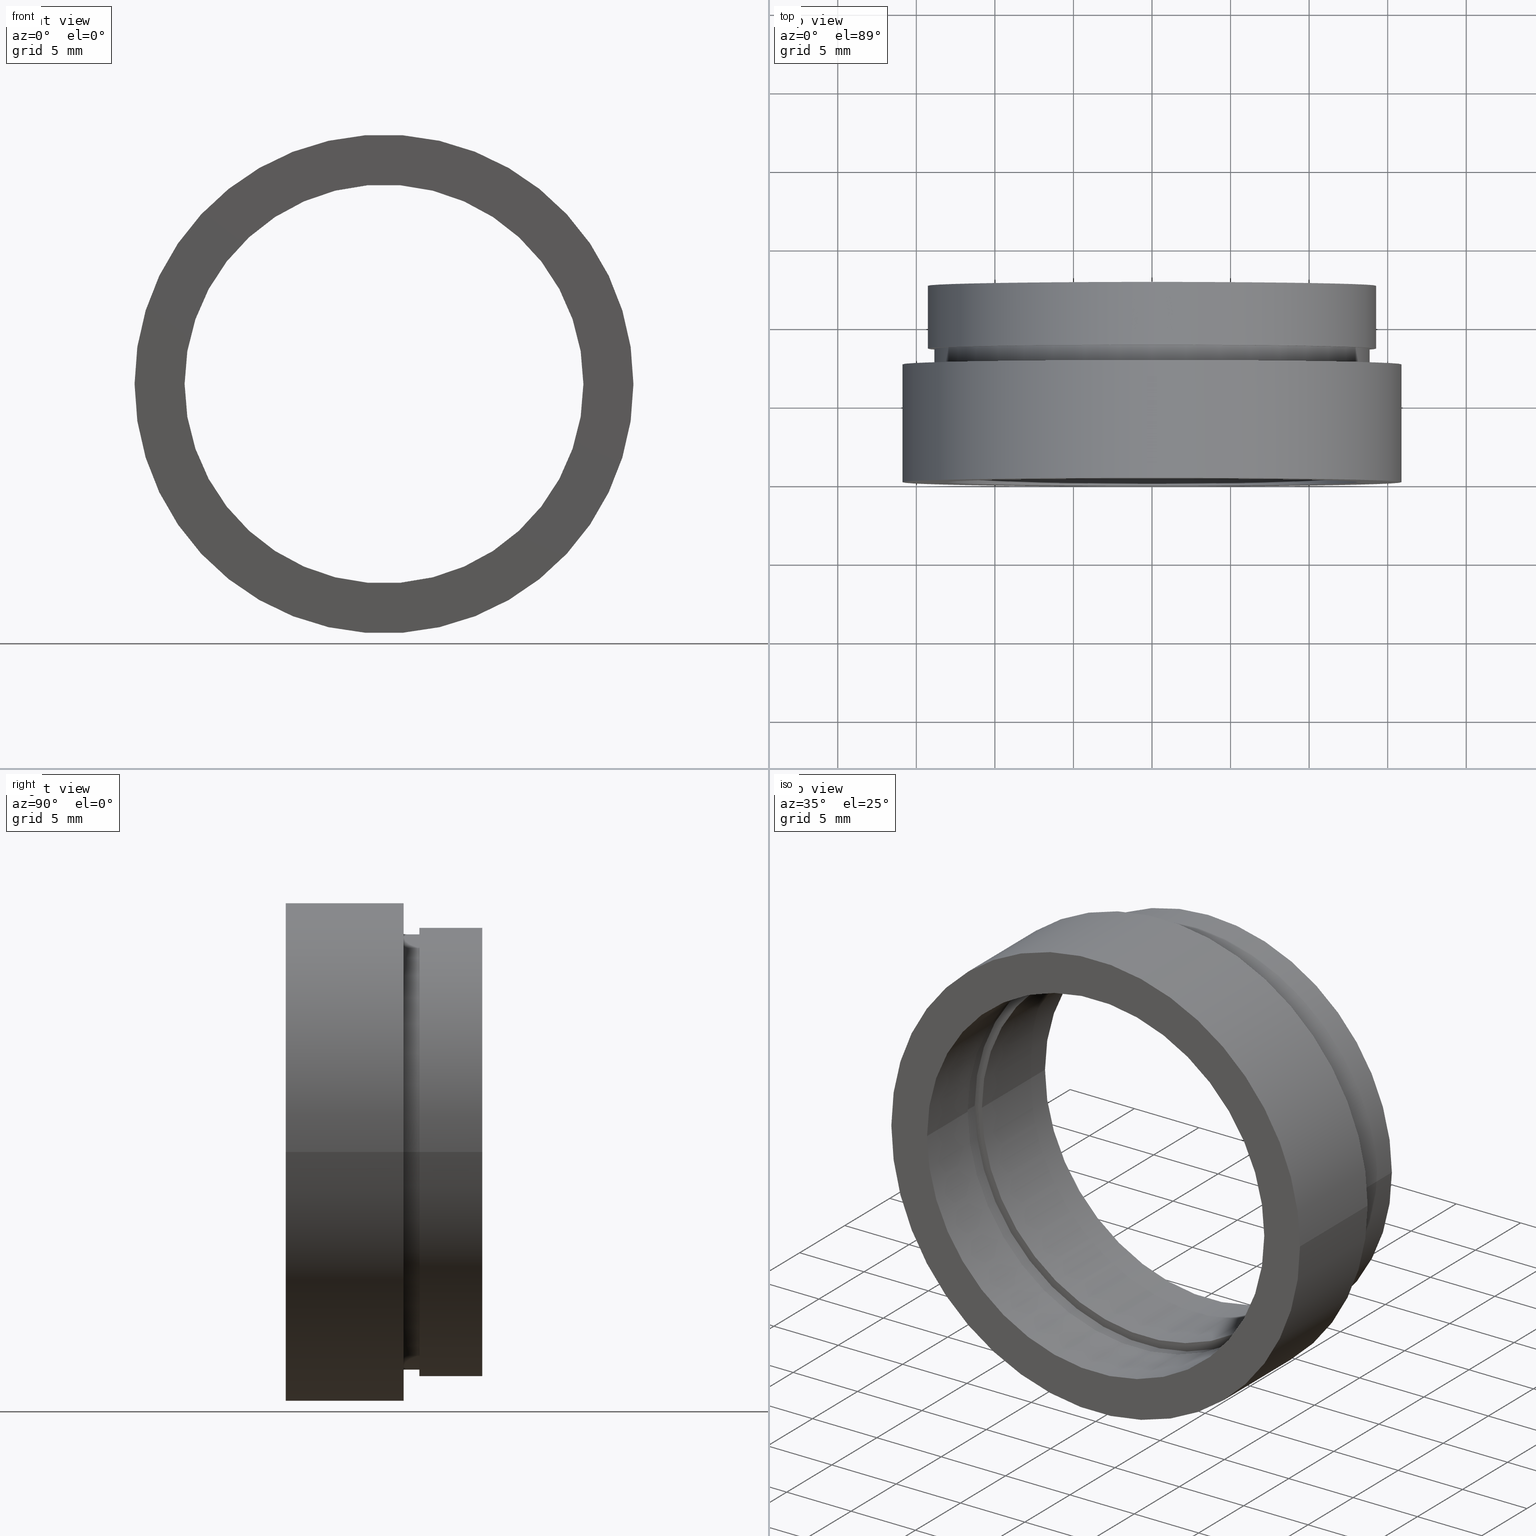
[diagram: canonical four-view strip — front | top / right | iso, engineering-drawing reading convention]
A machine part, canonical four-view strip (front | top / right | iso — engineering-drawing reading convention). The complete STEP part file that produces these views, byte-faithful:
ISO-10303-21;
HEADER;
FILE_DESCRIPTION (( 'STEP AP214' ),
    '1' );
FILE_NAME ('504122.STEP',
    '2019-10-09T01:26:01',
    ( '' ),
    ( '' ),
    'SwSTEP 2.0',
    'SolidWorks 2016',
    '' );
FILE_SCHEMA (( 'AUTOMOTIVE_DESIGN' ));
ENDSEC;

DATA;
#1 = ORIENTED_EDGE ( 'NONE', *, *, #414, .T. ) ;
#2 = DIRECTION ( 'NONE',  ( -1.000000000000000000, -1.367000375080226200E-016, 0.0000000000000000000 ) ) ;
#3 =( GEOMETRIC_REPRESENTATION_CONTEXT ( 3 ) GLOBAL_UNCERTAINTY_ASSIGNED_CONTEXT ( ( #333 ) ) GLOBAL_UNIT_ASSIGNED_CONTEXT ( ( #129, #171, #426 ) ) REPRESENTATION_CONTEXT ( 'NONE', 'WORKASPACE' ) );
#4 = CARTESIAN_POINT ( 'NONE',  ( 1.026991039163387700E-015, 8.499999999999998200, 0.0000000000000000000 ) ) ;
#5 = CARTESIAN_POINT ( 'NONE',  ( -15.87499999999999300, -5.413573745600033100E-015, 0.0000000000000000000 ) ) ;
#6 = EDGE_CURVE ( 'NONE', #150, #107, #270, .T. ) ;
#7 = LINE ( 'NONE', #198, #309 ) ;
#8 = CARTESIAN_POINT ( 'NONE',  ( -13.09999999999999800, 4.499999999999993800, 0.0000000000000000000 ) ) ;
#9 = VERTEX_POINT ( 'NONE', #24 ) ;
#10 = MECHANICAL_DESIGN_GEOMETRIC_PRESENTATION_REPRESENTATION (  '', ( #72 ), #468 ) ;
#11 = DIRECTION ( 'NONE',  ( -1.000000000000000000, -1.216496126210944700E-016, 0.0000000000000000000 ) ) ;
#12 = STYLED_ITEM ( 'NONE', ( #207 ), #561 ) ;
#13 = DIRECTION ( 'NONE',  ( -1.224646799147351000E-016, 1.000000000000000000, -0.0000000000000000000 ) ) ;
#14 = ORIENTED_EDGE ( 'NONE', *, *, #193, .F. ) ;
#15 = ORIENTED_EDGE ( 'NONE', *, *, #353, .F. ) ;
#16 = VERTEX_POINT ( 'NONE', #366 ) ;
#17 = FACE_OUTER_BOUND ( 'NONE', #563, .T. ) ;
#18 = EDGE_CURVE ( 'NONE', #212, #379, #507, .T. ) ;
#19 = EDGE_LOOP ( 'NONE', ( #179, #532 ) ) ;
#20 = PRODUCT_DEFINITION_CONTEXT ( 'detailed design', #133, 'design' ) ;
#21 = CARTESIAN_POINT ( 'NONE',  ( 1.149455719078122700E-015, 7.499999999999998200, 0.0000000000000000000 ) ) ;
#22 = AXIS2_PLACEMENT_3D ( 'NONE', #434, #374, #54 ) ;
#23 = ORIENTED_EDGE ( 'NONE', *, *, #230, .F. ) ;
#24 = CARTESIAN_POINT ( 'NONE',  ( -13.84999999999999800, 7.499999999999996400, 0.0000000000000000000 ) ) ;
#25 = AXIS2_PLACEMENT_3D ( 'NONE', #624, #431, #41 ) ;
#26 = SURFACE_STYLE_USAGE ( .BOTH. , #301 ) ;
#27 = DIRECTION ( 'NONE',  ( -1.000000000000000000, -1.224646799147351000E-016, 0.0000000000000000000 ) ) ;
#28 = UNCERTAINTY_MEASURE_WITH_UNIT (LENGTH_MEASURE( 1.000000000000000100E-005 ), #222, 'distance_accuracy_value', 'NONE');
#29 = EDGE_LOOP ( 'NONE', ( #23, #313 ) ) ;
#30 = FACE_OUTER_BOUND ( 'NONE', #505, .T. ) ;
#31 = EDGE_LOOP ( 'NONE', ( #139, #14 ) ) ;
#32 = CARTESIAN_POINT ( 'NONE',  ( -13.09999999999999800, -1.604287306883029700E-015, 0.0000000000000000000 ) ) ;
#33 = DIRECTION ( 'NONE',  ( -1.224646799147351000E-016, 1.000000000000000000, -0.0000000000000000000 ) ) ;
#34 = EDGE_CURVE ( 'NONE', #369, #287, #443, .T. ) ;
#35 = CARTESIAN_POINT ( 'NONE',  ( 0.0000000000000000000, 16.88601823708207700, 0.0000000000000000000 ) ) ;
#36 = ORIENTED_EDGE ( 'NONE', *, *, #444, .T. ) ;
#37 = CIRCLE ( 'NONE', #268, 12.68999999999999800 ) ;
#38 = DIRECTION ( 'NONE',  ( -1.000000000000000000, 0.0000000000000000000, 0.0000000000000000000 ) ) ;
#39 = LINE ( 'NONE', #462, #322 ) ;
#40 = SURFACE_STYLE_USAGE ( .BOTH. , #562 ) ;
#41 = DIRECTION ( 'NONE',  ( -1.000000000000000000, -1.216496126210944700E-016, 0.0000000000000000000 ) ) ;
#42 = DIRECTION ( 'NONE',  ( -1.224646799147351000E-016, 1.000000000000000000, -0.0000000000000000000 ) ) ;
#43 = DIRECTION ( 'NONE',  ( -1.000000000000000000, -1.309225264888156400E-016, 0.0000000000000000000 ) ) ;
#44 = PRESENTATION_LAYER_ASSIGNMENT (  '', '', ( #533 ) ) ;
#45 = PRESENTATION_STYLE_ASSIGNMENT (( #184 ) ) ;
#46 = DIRECTION ( 'NONE',  ( 1.000000000000000000, 1.224646799147351000E-016, 0.0000000000000000000 ) ) ;
#47 = EDGE_CURVE ( 'NONE', #342, #334, #306, .T. ) ;
#48 = DIRECTION ( 'NONE',  ( -1.224646799147351000E-016, 1.000000000000000000, 0.0000000000000000000 ) ) ;
#49 = CYLINDRICAL_SURFACE ( 'NONE', #249, 13.10000000000000000 ) ;
#50 = DIRECTION ( 'NONE',  ( -1.224646799147351000E-016, 1.000000000000000000, -0.0000000000000000000 ) ) ;
#51 = FILL_AREA_STYLE ('',( #227 ) ) ;
#52 = PRESENTATION_LAYER_ASSIGNMENT (  '', '', ( #490 ) ) ;
#53 = CIRCLE ( 'NONE', #253, 13.85000000000000000 ) ;
#54 = DIRECTION ( 'NONE',  ( -1.000000000000000000, -1.252507924893001600E-016, 0.0000000000000000000 ) ) ;
#55 = DIRECTION ( 'NONE',  ( 1.224646799147351000E-016, -1.000000000000000000, 0.0000000000000000000 ) ) ;
#56 = EDGE_CURVE ( 'NONE', #107, #453, #572, .T. ) ;
#57 = DIRECTION ( 'NONE',  ( -1.000000000000000000, -1.367000375080226400E-016, 0.0000000000000000000 ) ) ;
#58 = CARTESIAN_POINT ( 'NONE',  ( -12.68999999999999600, 5.499999999999994700, 0.0000000000000000000 ) ) ;
#59 = ORIENTED_EDGE ( 'NONE', *, *, #6, .T. ) ;
#60 =( LENGTH_UNIT ( ) NAMED_UNIT ( * ) SI_UNIT ( .MILLI., .METRE. ) );
#61 = SURFACE_STYLE_FILL_AREA ( #51 ) ;
#62 = VECTOR ( 'NONE', #360, 1000.000000000000000 ) ;
#63 = AXIS2_PLACEMENT_3D ( 'NONE', #232, #344, #393 ) ;
#64 = COLOUR_RGB ( '',1.000000000000000000, 1.000000000000000000, 1.000000000000000000 ) ;
#65 = CARTESIAN_POINT ( 'NONE',  ( 14.25999999999999800, 16.88601823708208000, 1.746346335584125400E-015 ) ) ;
#66 = VERTEX_POINT ( 'NONE', #320 ) ;
#67 = ORIENTED_EDGE ( 'NONE', *, *, #6, .F. ) ;
#68 = EDGE_CURVE ( 'NONE', #455, #278, #525, .T. ) ;
#69 = ORIENTED_EDGE ( 'NONE', *, *, #609, .F. ) ;
#70 = SURFACE_STYLE_FILL_AREA ( #623 ) ;
#71 = VERTEX_POINT ( 'NONE', #210 ) ;
#72 = STYLED_ITEM ( 'NONE', ( #284 ), #544 ) ;
#73 = CIRCLE ( 'NONE', #293, 14.25999999999999800 ) ;
#74 =( LENGTH_UNIT ( ) NAMED_UNIT ( * ) SI_UNIT ( .MILLI., .METRE. ) );
#75 = PRESENTATION_STYLE_ASSIGNMENT (( #97 ) ) ;
#76 = FILL_AREA_STYLE_COLOUR ( '', #262 ) ;
#77 = EDGE_CURVE ( 'NONE', #109, #342, #73, .T. ) ;
#78 = FILL_AREA_STYLE_COLOUR ( '', #583 ) ;
#79 = ORIENTED_EDGE ( 'NONE', *, *, #77, .T. ) ;
#80 = PRODUCT_DEFINITION_FORMATION_WITH_SPECIFIED_SOURCE ( '�κ�', '', #147, .NOT_KNOWN. ) ;
#81 = ADVANCED_FACE ( 'NONE', ( #115 ), #553, .T. ) ;
#82 = CIRCLE ( 'NONE', #524, 13.10000000000000000 ) ;
#83 = DIRECTION ( 'NONE',  ( -1.224646799147351000E-016, 1.000000000000000000, -0.0000000000000000000 ) ) ;
#84 = AXIS2_PLACEMENT_3D ( 'NONE', #520, #218, #2 ) ;
#85 = PLANE ( 'NONE',  #181 ) ;
#86 = FACE_BOUND ( 'NONE', #552, .T. ) ;
#87 = ORIENTED_EDGE ( 'NONE', *, *, #242, .F. ) ;
#88 = DIRECTION ( 'NONE',  ( -1.224646799147351000E-016, 1.000000000000000000, -0.0000000000000000000 ) ) ;
#89 =( NAMED_UNIT ( * ) PLANE_ANGLE_UNIT ( ) SI_UNIT ( $, .RADIAN. ) );
#90 = AXIS2_PLACEMENT_3D ( 'NONE', #606, #357, #245 ) ;
#91 = ORIENTED_EDGE ( 'NONE', *, *, #200, .T. ) ;
#92 = ORIENTED_EDGE ( 'NONE', *, *, #215, .F. ) ;
#93 = EDGE_CURVE ( 'NONE', #71, #382, #422, .T. ) ;
#94 =( LENGTH_UNIT ( ) NAMED_UNIT ( * ) SI_UNIT ( .MILLI., .METRE. ) );
#95 = SURFACE_STYLE_FILL_AREA ( #285 ) ;
#96 =( LENGTH_UNIT ( ) NAMED_UNIT ( * ) SI_UNIT ( .MILLI., .METRE. ) );
#97 = SURFACE_STYLE_USAGE ( .BOTH. , #234 ) ;
#98 = SURFACE_SIDE_STYLE ('',( #61 ) ) ;
#99 = ORIENTED_EDGE ( 'NONE', *, *, #118, .T. ) ;
#100 = COLOUR_RGB ( '',1.000000000000000000, 1.000000000000000000, 1.000000000000000000 ) ;
#101 = ORIENTED_EDGE ( 'NONE', *, *, #345, .T. ) ;
#102 = CARTESIAN_POINT ( 'NONE',  ( 2.067940818438636100E-015, 0.0000000000000000000, 0.0000000000000000000 ) ) ;
#103 =( GEOMETRIC_REPRESENTATION_CONTEXT ( 3 ) GLOBAL_UNCERTAINTY_ASSIGNED_CONTEXT ( ( #341 ) ) GLOBAL_UNIT_ASSIGNED_CONTEXT ( ( #413, #211, #518 ) ) REPRESENTATION_CONTEXT ( 'NONE', 'WORKASPACE' ) );
#104 = CARTESIAN_POINT ( 'NONE',  ( 1.394385078907593200E-015, 5.499999999999996400, 0.0000000000000000000 ) ) ;
#105 = ADVANCED_FACE ( 'NONE', ( #602, #17 ), #373, .F. ) ;
#106 = EDGE_CURVE ( 'NONE', #334, #267, #545, .T. ) ;
#107 = VERTEX_POINT ( 'NONE', #380 ) ;
#108 = DIRECTION ( 'NONE',  ( 1.224646799147351000E-016, -1.000000000000000000, 0.0000000000000000000 ) ) ;
#109 = VERTEX_POINT ( 'NONE', #479 ) ;
#110 = PRESENTATION_LAYER_ASSIGNMENT (  '', '', ( #541 ) ) ;
#111 = CARTESIAN_POINT ( 'NONE',  ( -13.24999999999999600, 4.499999999999993800, 0.0000000000000000000 ) ) ;
#112 = FACE_OUTER_BOUND ( 'NONE', #265, .T. ) ;
#113 = ORIENTED_EDGE ( 'NONE', *, *, #329, .F. ) ;
#114 = AXIS2_PLACEMENT_3D ( 'NONE', #194, #153, #459 ) ;
#115 = FACE_OUTER_BOUND ( 'NONE', #189, .T. ) ;
#116 = CYLINDRICAL_SURFACE ( 'NONE', #175, 14.25999999999999800 ) ;
#117 = CARTESIAN_POINT ( 'NONE',  ( 15.87500000000000000, 16.88601823708208000, 1.944126793646423200E-015 ) ) ;
#118 = EDGE_CURVE ( 'NONE', #16, #9, #467, .T. ) ;
#119 = CARTESIAN_POINT ( 'NONE',  ( -13.24999999999999800, 5.499999999999994700, 0.0000000000000000000 ) ) ;
#120 = DIRECTION ( 'NONE',  ( -1.000000000000000000, -1.324216393875425300E-016, 0.0000000000000000000 ) ) ;
#121 = DIRECTION ( 'NONE',  ( -1.224646799147351000E-016, 1.000000000000000000, -0.0000000000000000000 ) ) ;
#122 = DIRECTION ( 'NONE',  ( -1.000000000000000000, -1.252507924893001600E-016, 0.0000000000000000000 ) ) ;
#123 = MECHANICAL_DESIGN_GEOMETRIC_PRESENTATION_REPRESENTATION (  '', ( #409 ), #437 ) ;
#124 = ORIENTED_EDGE ( 'NONE', *, *, #200, .F. ) ;
#125 = FILL_AREA_STYLE_COLOUR ( '', #371 ) ;
#126 = EDGE_LOOP ( 'NONE', ( #402, #178 ) ) ;
#127 = AXIS2_PLACEMENT_3D ( 'NONE', #575, #523, #529 ) ;
#128 = DIRECTION ( 'NONE',  ( -1.224646799147351000E-016, 1.000000000000000000, -0.0000000000000000000 ) ) ;
#129 =( LENGTH_UNIT ( ) NAMED_UNIT ( * ) SI_UNIT ( .MILLI., .METRE. ) );
#130 = CARTESIAN_POINT ( 'NONE',  ( 0.0000000000000000000, 16.88601823708207700, 0.0000000000000000000 ) ) ;
#131 = DIRECTION ( 'NONE',  ( -1.224646799147351000E-016, 1.000000000000000000, -0.0000000000000000000 ) ) ;
#132 = CLOSED_SHELL ( 'NONE', ( #390, #351, #596, #494, #593, #561, #142, #291, #346, #540, #155, #299, #208, #544, #348, #547, #105, #81 ) ) ;
#133 = APPLICATION_CONTEXT ( 'automotive_design' ) ;
#134 = EDGE_CURVE ( 'NONE', #453, #66, #295, .T. ) ;
#135 = CARTESIAN_POINT ( 'NONE',  ( 1.026991039163387700E-015, 8.499999999999998200, 0.0000000000000000000 ) ) ;
#136 = CARTESIAN_POINT ( 'NONE',  ( 13.10000000000000100, 1.604287306883029700E-015, 1.604287306883032600E-015 ) ) ;
#137 = ORIENTED_EDGE ( 'NONE', *, *, #325, .F. ) ;
#138 = ORIENTED_EDGE ( 'NONE', *, *, #18, .T. ) ;
#139 = ORIENTED_EDGE ( 'NONE', *, *, #18, .F. ) ;
#140 = MECHANICAL_DESIGN_GEOMETRIC_PRESENTATION_REPRESENTATION (  '', ( #533 ), #103 ) ;
#141 = VECTOR ( 'NONE', #33, 1000.000000000000000 ) ;
#142 = ADVANCED_FACE ( 'NONE', ( #30, #86 ), #174, .F. ) ;
#143 = ORIENTED_EDGE ( 'NONE', *, *, #329, .T. ) ;
#144 = EDGE_CURVE ( 'NONE', #256, #483, #163, .T. ) ;
#145 = ORIENTED_EDGE ( 'NONE', *, *, #471, .F. ) ;
#146 = ORIENTED_EDGE ( 'NONE', *, *, #574, .T. ) ;
#147 = PRODUCT ( '504122', '504122', '', ( #338 ) ) ;
#148 = EDGE_LOOP ( 'NONE', ( #185, #91 ) ) ;
#149 = FACE_OUTER_BOUND ( 'NONE', #154, .T. ) ;
#150 = VERTEX_POINT ( 'NONE', #5 ) ;
#151 = PRESENTATION_LAYER_ASSIGNMENT (  '', '', ( #12 ) ) ;
#152 = CIRCLE ( 'NONE', #321, 13.24999999999999800 ) ;
#153 = DIRECTION ( 'NONE',  ( -1.224646799147351000E-016, 1.000000000000000000, -0.0000000000000000000 ) ) ;
#154 = EDGE_LOOP ( 'NONE', ( #221, #315, #478, #454 ) ) ;
#155 = ADVANCED_FACE ( 'NONE', ( #195, #588 ), #85, .F. ) ;
#156 = EDGE_CURVE ( 'NONE', #9, #16, #53, .T. ) ;
#157 = CIRCLE ( 'NONE', #605, 13.10000000000000000 ) ;
#158 = DIRECTION ( 'NONE',  ( -1.224646799147351000E-016, 1.000000000000000000, -0.0000000000000000000 ) ) ;
#159 = CARTESIAN_POINT ( 'NONE',  ( -13.10000000000000000, 16.88601823708207700, 0.0000000000000000000 ) ) ;
#160 = ORIENTED_EDGE ( 'NONE', *, *, #450, .F. ) ;
#161 = DIRECTION ( 'NONE',  ( -1.000000000000000000, 0.0000000000000000000, 0.0000000000000000000 ) ) ;
#162 = AXIS2_PLACEMENT_3D ( 'NONE', #204, #213, #38 ) ;
#163 = CIRCLE ( 'NONE', #223, 13.25000000000000000 ) ;
#164 = CARTESIAN_POINT ( 'NONE',  ( 1.394385078907593200E-015, 5.499999999999996400, 0.0000000000000000000 ) ) ;
#165 = COLOUR_RGB ( '',1.000000000000000000, 1.000000000000000000, 1.000000000000000000 ) ;
#166 = AXIS2_PLACEMENT_3D ( 'NONE', #486, #436, #488 ) ;
#167 = DIRECTION ( 'NONE',  ( -1.224646799147351000E-016, 1.000000000000000000, -0.0000000000000000000 ) ) ;
#168 = DIRECTION ( 'NONE',  ( -1.224646799147351000E-016, 1.000000000000000000, -0.0000000000000000000 ) ) ;
#169 = APPLICATION_PROTOCOL_DEFINITION ( 'draft international standard', 'automotive_design', 1998, #133 ) ;
#170 = FACE_OUTER_BOUND ( 'NONE', #148, .T. ) ;
#171 =( NAMED_UNIT ( * ) PLANE_ANGLE_UNIT ( ) SI_UNIT ( $, .RADIAN. ) );
#172 = COLOUR_RGB ( '',1.000000000000000000, 1.000000000000000000, 1.000000000000000000 ) ;
#173 = CYLINDRICAL_SURFACE ( 'NONE', #425, 13.24999999999999800 ) ;
#174 = PLANE ( 'NONE',  #127 ) ;
#175 = AXIS2_PLACEMENT_3D ( 'NONE', #35, #42, #263 ) ;
#176 = SURFACE_SIDE_STYLE ('',( #292 ) ) ;
#177 = CARTESIAN_POINT ( 'NONE',  ( 1.149455719078122700E-015, 7.499999999999998200, 0.0000000000000000000 ) ) ;
#178 = ORIENTED_EDGE ( 'NONE', *, *, #34, .T. ) ;
#179 = ORIENTED_EDGE ( 'NONE', *, *, #156, .F. ) ;
#180 = FILL_AREA_STYLE ('',( #573 ) ) ;
#181 = AXIS2_PLACEMENT_3D ( 'NONE', #264, #48, #475 ) ;
#182 = FACE_OUTER_BOUND ( 'NONE', #610, .T. ) ;
#183 =( NAMED_UNIT ( * ) SI_UNIT ( $, .STERADIAN. ) SOLID_ANGLE_UNIT ( ) );
#184 = SURFACE_STYLE_USAGE ( .BOTH. , #98 ) ;
#185 = ORIENTED_EDGE ( 'NONE', *, *, #106, .T. ) ;
#186 =( GEOMETRIC_REPRESENTATION_CONTEXT ( 3 ) GLOBAL_UNCERTAINTY_ASSIGNED_CONTEXT ( ( #397 ) ) GLOBAL_UNIT_ASSIGNED_CONTEXT ( ( #477, #279, #226 ) ) REPRESENTATION_CONTEXT ( 'NONE', 'WORKASPACE' ) );
#187 = CARTESIAN_POINT ( 'NONE',  ( 1.516849758822328500E-015, 4.499999999999995600, 0.0000000000000000000 ) ) ;
#188 = AXIS2_PLACEMENT_3D ( 'NONE', #559, #252, #612 ) ;
#189 = EDGE_LOOP ( 'NONE', ( #377, #401, #354, #296 ) ) ;
#190 = DIRECTION ( 'NONE',  ( -1.224646799147351000E-016, 1.000000000000000000, -0.0000000000000000000 ) ) ;
#191 = DIRECTION ( 'NONE',  ( 1.000000000000000000, 1.224646799147351000E-016, 0.0000000000000000000 ) ) ;
#192 = PRESENTATION_STYLE_ASSIGNMENT (( #316 ) ) ;
#193 = EDGE_CURVE ( 'NONE', #379, #212, #288, .T. ) ;
#194 = CARTESIAN_POINT ( 'NONE',  ( 0.0000000000000000000, 16.88601823708207700, 0.0000000000000000000 ) ) ;
#195 = FACE_OUTER_BOUND ( 'NONE', #522, .T. ) ;
#196 = PRESENTATION_STYLE_ASSIGNMENT (( #576 ) ) ;
#197 = LINE ( 'NONE', #359, #392 ) ;
#198 = CARTESIAN_POINT ( 'NONE',  ( 13.10000000000000000, 16.88601823708207700, 1.604287306883032600E-015 ) ) ;
#199 = LINE ( 'NONE', #254, #398 ) ;
#200 = EDGE_CURVE ( 'NONE', #267, #334, #487, .T. ) ;
#201 = EDGE_LOOP ( 'NONE', ( #281, #87, #1, #589 ) ) ;
#202 = ORIENTED_EDGE ( 'NONE', *, *, #47, .F. ) ;
#203 = MECHANICAL_DESIGN_GEOMETRIC_PRESENTATION_REPRESENTATION (  '', ( #12 ), #186 ) ;
#204 = CARTESIAN_POINT ( 'NONE',  ( 0.0000000000000000000, 16.88601823708207700, 0.0000000000000000000 ) ) ;
#205 = DIRECTION ( 'NONE',  ( -1.000000000000000000, 0.0000000000000000000, 0.0000000000000000000 ) ) ;
#206 = EDGE_CURVE ( 'NONE', #455, #250, #498, .T. ) ;
#207 = PRESENTATION_STYLE_ASSIGNMENT (( #271 ) ) ;
#208 = ADVANCED_FACE ( 'NONE', ( #516, #170 ), #385, .F. ) ;
#209 =( NAMED_UNIT ( * ) SI_UNIT ( $, .STERADIAN. ) SOLID_ANGLE_UNIT ( ) );
#210 = CARTESIAN_POINT ( 'NONE',  ( 13.25000000000000000, 4.499999999999997300, 1.622657008870242700E-015 ) ) ;
#211 =( NAMED_UNIT ( * ) PLANE_ANGLE_UNIT ( ) SI_UNIT ( $, .RADIAN. ) );
#212 = VERTEX_POINT ( 'NONE', #421 ) ;
#213 = DIRECTION ( 'NONE',  ( -1.224646799147351000E-016, 1.000000000000000000, -0.0000000000000000000 ) ) ;
#214 = DIRECTION ( 'NONE',  ( -1.000000000000000000, -1.092739197465705300E-016, 0.0000000000000000000 ) ) ;
#215 = EDGE_CURVE ( 'NONE', #287, #369, #37, .T. ) ;
#216 = CYLINDRICAL_SURFACE ( 'NONE', #458, 14.25999999999999800 ) ;
#217 =( NAMED_UNIT ( * ) PLANE_ANGLE_UNIT ( ) SI_UNIT ( $, .RADIAN. ) );
#218 = DIRECTION ( 'NONE',  ( -1.224646799147351000E-016, 1.000000000000000000, -0.0000000000000000000 ) ) ;
#219 = STYLED_ITEM ( 'NONE', ( #558 ), #596 ) ;
#220 =( NAMED_UNIT ( * ) SI_UNIT ( $, .STERADIAN. ) SOLID_ANGLE_UNIT ( ) );
#221 = ORIENTED_EDGE ( 'NONE', *, *, #34, .F. ) ;
#222 =( LENGTH_UNIT ( ) NAMED_UNIT ( * ) SI_UNIT ( .MILLI., .METRE. ) );
#223 = AXIS2_PLACEMENT_3D ( 'NONE', #332, #621, #326 ) ;
#224 = CARTESIAN_POINT ( 'NONE',  ( 1.026991039163387700E-015, 8.499999999999998200, 0.0000000000000000000 ) ) ;
#225 = DIRECTION ( 'NONE',  ( 1.000000000000000000, 0.0000000000000000000, 0.0000000000000000000 ) ) ;
#226 =( NAMED_UNIT ( * ) SI_UNIT ( $, .STERADIAN. ) SOLID_ANGLE_UNIT ( ) );
#227 = FILL_AREA_STYLE_COLOUR ( '', #100 ) ;
#228 =( GEOMETRIC_REPRESENTATION_CONTEXT ( 3 ) GLOBAL_UNCERTAINTY_ASSIGNED_CONTEXT ( ( #28 ) ) GLOBAL_UNIT_ASSIGNED_CONTEXT ( ( #222, #217, #423 ) ) REPRESENTATION_CONTEXT ( 'NONE', 'WORKASPACE' ) );
#229 = ORIENTED_EDGE ( 'NONE', *, *, #134, .T. ) ;
#230 = EDGE_CURVE ( 'NONE', #342, #109, #327, .T. ) ;
#231 = ORIENTED_EDGE ( 'NONE', *, *, #242, .T. ) ;
#232 = CARTESIAN_POINT ( 'NONE',  ( 0.0000000000000000000, 16.88601823708207700, 0.0000000000000000000 ) ) ;
#233 = UNCERTAINTY_MEASURE_WITH_UNIT (LENGTH_MEASURE( 1.000000000000000100E-005 ), #96, 'distance_accuracy_value', 'NONE');
#234 = SURFACE_SIDE_STYLE ('',( #95 ) ) ;
#235 = SURFACE_STYLE_FILL_AREA ( #355 ) ;
#236 = ORIENTED_EDGE ( 'NONE', *, *, #370, .T. ) ;
#237 = ORIENTED_EDGE ( 'NONE', *, *, #471, .T. ) ;
#238 =( GEOMETRIC_REPRESENTATION_CONTEXT ( 3 ) GLOBAL_UNCERTAINTY_ASSIGNED_CONTEXT ( ( #233 ) ) GLOBAL_UNIT_ASSIGNED_CONTEXT ( ( #96, #89, #220 ) ) REPRESENTATION_CONTEXT ( 'NONE', 'WORKASPACE' ) );
#239 = CARTESIAN_POINT ( 'NONE',  ( 13.10000000000000100, 4.499999999999997300, 0.0000000000000000000 ) ) ;
#240 = CIRCLE ( 'NONE', #275, 13.85000000000000000 ) ;
#241 = UNCERTAINTY_MEASURE_WITH_UNIT (LENGTH_MEASURE( 1.000000000000000100E-005 ), #94, 'distance_accuracy_value', 'NONE');
#242 = EDGE_CURVE ( 'NONE', #382, #71, #152, .T. ) ;
#243 = DIRECTION ( 'NONE',  ( -1.224646799147351000E-016, 1.000000000000000000, -0.0000000000000000000 ) ) ;
#244 = ADVANCED_BREP_SHAPE_REPRESENTATION ( '504122', ( #362, #395 ), #228 ) ;
#245 = DIRECTION ( 'NONE',  ( -1.000000000000000000, -1.224646799147351000E-016, 0.0000000000000000000 ) ) ;
#246 = LINE ( 'NONE', #65, #496 ) ;
#247 = EDGE_CURVE ( 'NONE', #150, #66, #571, .T. ) ;
#248 = ORIENTED_EDGE ( 'NONE', *, *, #515, .T. ) ;
#249 = AXIS2_PLACEMENT_3D ( 'NONE', #259, #365, #331 ) ;
#250 = VERTEX_POINT ( 'NONE', #136 ) ;
#251 = VECTOR ( 'NONE', #298, 1000.000000000000000 ) ;
#252 = DIRECTION ( 'NONE',  ( -1.224646799147351000E-016, 1.000000000000000000, -0.0000000000000000000 ) ) ;
#253 = AXIS2_PLACEMENT_3D ( 'NONE', #569, #272, #122 ) ;
#254 = CARTESIAN_POINT ( 'NONE',  ( 13.24999999999999800, 16.88601823708207700, 1.622657008870242700E-015 ) ) ;
#255 = FILL_AREA_STYLE_COLOUR ( '', #165 ) ;
#256 = VERTEX_POINT ( 'NONE', #384 ) ;
#257 = VERTEX_POINT ( 'NONE', #387 ) ;
#258 = CARTESIAN_POINT ( 'NONE',  ( 0.0000000000000000000, 16.88601823708207700, 0.0000000000000000000 ) ) ;
#259 = CARTESIAN_POINT ( 'NONE',  ( 0.0000000000000000000, 16.88601823708207700, 0.0000000000000000000 ) ) ;
#260 = DIRECTION ( 'NONE',  ( -1.000000000000000000, -1.216496126210944700E-016, 0.0000000000000000000 ) ) ;
#261 = EDGE_CURVE ( 'NONE', #287, #212, #539, .T. ) ;
#262 = COLOUR_RGB ( '',1.000000000000000000, 1.000000000000000000, 1.000000000000000000 ) ;
#263 = DIRECTION ( 'NONE',  ( -1.000000000000000000, -2.432992252421889500E-016, 0.0000000000000000000 ) ) ;
#264 = CARTESIAN_POINT ( 'NONE',  ( 12.69000000000000000, 5.499999999999998200, 0.0000000000000000000 ) ) ;
#265 = EDGE_LOOP ( 'NONE', ( #317, #237, #69, #350 ) ) ;
#266 = DIRECTION ( 'NONE',  ( -1.000000000000000000, -1.252507924893001600E-016, 0.0000000000000000000 ) ) ;
#267 = VERTEX_POINT ( 'NONE', #582 ) ;
#268 = AXIS2_PLACEMENT_3D ( 'NONE', #104, #481, #57 ) ;
#269 = CARTESIAN_POINT ( 'NONE',  ( 5.371323195044474300E-016, 12.49999999999999600, 0.0000000000000000000 ) ) ;
#270 = CIRCLE ( 'NONE', #461, 15.87499999999999600 ) ;
#271 = SURFACE_STYLE_USAGE ( .BOTH. , #509 ) ;
#272 = DIRECTION ( 'NONE',  ( -1.224646799147351000E-016, 1.000000000000000000, -0.0000000000000000000 ) ) ;
#273 = SURFACE_SIDE_STYLE ('',( #456 ) ) ;
#274 = CYLINDRICAL_SURFACE ( 'NONE', #114, 15.87500000000000000 ) ;
#275 = AXIS2_PLACEMENT_3D ( 'NONE', #4, #378, #266 ) ;
#276 = APPLICATION_PROTOCOL_DEFINITION ( 'draft international standard', 'automotive_design', 1998, #579 ) ;
#277 = DIRECTION ( 'NONE',  ( -1.224646799147351000E-016, 1.000000000000000000, -0.0000000000000000000 ) ) ;
#278 = VERTEX_POINT ( 'NONE', #8 ) ;
#279 =( NAMED_UNIT ( * ) PLANE_ANGLE_UNIT ( ) SI_UNIT ( $, .RADIAN. ) );
#280 = CARTESIAN_POINT ( 'NONE',  ( 12.69000000000000000, 12.49999999999999800, 0.0000000000000000000 ) ) ;
#281 = ORIENTED_EDGE ( 'NONE', *, *, #515, .F. ) ;
#282 = DIRECTION ( 'NONE',  ( -1.000000000000000000, -1.224646799147351000E-016, 0.0000000000000000000 ) ) ;
#283 = SURFACE_STYLE_FILL_AREA ( #564 ) ;
#284 = PRESENTATION_STYLE_ASSIGNMENT (( #40 ) ) ;
#285 = FILL_AREA_STYLE ('',( #534 ) ) ;
#286 = ORIENTED_EDGE ( 'NONE', *, *, #546, .F. ) ;
#287 = VERTEX_POINT ( 'NONE', #58 ) ;
#288 = CIRCLE ( 'NONE', #84, 12.69000000000000000 ) ;
#289 = PRESENTATION_LAYER_ASSIGNMENT (  '', '', ( #219 ) ) ;
#290 =( NAMED_UNIT ( * ) PLANE_ANGLE_UNIT ( ) SI_UNIT ( $, .RADIAN. ) );
#291 = ADVANCED_FACE ( 'NONE', ( #304 ), #607, .F. ) ;
#292 = SURFACE_STYLE_FILL_AREA ( #180 ) ;
#293 = AXIS2_PLACEMENT_3D ( 'NONE', #224, #376, #260 ) ;
#294 = DIRECTION ( 'NONE',  ( -1.000000000000000000, -1.092739197465705300E-016, 0.0000000000000000000 ) ) ;
#295 = CIRCLE ( 'NONE', #399, 15.87500000000000000 ) ;
#296 = ORIENTED_EDGE ( 'NONE', *, *, #134, .F. ) ;
#297 = DIRECTION ( 'NONE',  ( -1.224646799147351000E-016, 1.000000000000000000, -0.0000000000000000000 ) ) ;
#298 = DIRECTION ( 'NONE',  ( -1.224646799147351000E-016, 1.000000000000000000, -0.0000000000000000000 ) ) ;
#299 = ADVANCED_FACE ( 'NONE', ( #457 ), #427, .F. ) ;
#300 =( NAMED_UNIT ( * ) SI_UNIT ( $, .STERADIAN. ) SOLID_ANGLE_UNIT ( ) );
#301 = SURFACE_SIDE_STYLE ('',( #235 ) ) ;
#302 = ORIENTED_EDGE ( 'NONE', *, *, #361, .F. ) ;
#303 = ORIENTED_EDGE ( 'NONE', *, *, #144, .F. ) ;
#304 = FACE_OUTER_BOUND ( 'NONE', #512, .T. ) ;
#305 = PLANE ( 'NONE',  #90 ) ;
#306 = LINE ( 'NONE', #411, #62 ) ;
#307 = AXIS2_PLACEMENT_3D ( 'NONE', #280, #55, #484 ) ;
#308 = DIRECTION ( 'NONE',  ( -1.000000000000000000, -1.224646799147350700E-016, 0.0000000000000000000 ) ) ;
#309 = VECTOR ( 'NONE', #158, 1000.000000000000000 ) ;
#310 = FACE_OUTER_BOUND ( 'NONE', #358, .T. ) ;
#311 = DIRECTION ( 'NONE',  ( -1.000000000000000000, -1.324216393875425300E-016, 0.0000000000000000000 ) ) ;
#312 = DIRECTION ( 'NONE',  ( -1.224646799147351000E-016, 1.000000000000000000, -0.0000000000000000000 ) ) ;
#313 = ORIENTED_EDGE ( 'NONE', *, *, #77, .F. ) ;
#314 = PRODUCT_DEFINITION ( 'δ֪', '', #80, #20 ) ;
#315 = ORIENTED_EDGE ( 'NONE', *, *, #546, .T. ) ;
#316 = SURFACE_STYLE_USAGE ( .BOTH. , #410 ) ;
#317 = ORIENTED_EDGE ( 'NONE', *, *, #156, .T. ) ;
#318 = UNCERTAINTY_MEASURE_WITH_UNIT (LENGTH_MEASURE( 1.000000000000000100E-005 ), #60, 'distance_accuracy_value', 'NONE');
#319 =( NAMED_UNIT ( * ) PLANE_ANGLE_UNIT ( ) SI_UNIT ( $, .RADIAN. ) );
#320 = CARTESIAN_POINT ( 'NONE',  ( -15.87500000000000000, 7.499999999999996400, 0.0000000000000000000 ) ) ;
#321 = AXIS2_PLACEMENT_3D ( 'NONE', #187, #13, #580 ) ;
#322 = VECTOR ( 'NONE', #466, 1000.000000000000000 ) ;
#323 = SURFACE_STYLE_FILL_AREA ( #620 ) ;
#324 = CARTESIAN_POINT ( 'NONE',  ( -13.24999999999999800, 16.88601823708207700, 0.0000000000000000000 ) ) ;
#325 = EDGE_CURVE ( 'NONE', #483, #256, #597, .T. ) ;
#326 = DIRECTION ( 'NONE',  ( -1.000000000000000000, -1.309225264888156400E-016, 0.0000000000000000000 ) ) ;
#327 = CIRCLE ( 'NONE', #430, 14.25999999999999800 ) ;
#328 = CARTESIAN_POINT ( 'NONE',  ( 1.516849758822328500E-015, 4.499999999999995600, 0.0000000000000000000 ) ) ;
#329 = EDGE_CURVE ( 'NONE', #109, #267, #246, .T. ) ;
#330 = MECHANICAL_DESIGN_GEOMETRIC_PRESENTATION_REPRESENTATION (  '', ( #219 ), #238 ) ;
#331 = DIRECTION ( 'NONE',  ( -1.000000000000000000, 0.0000000000000000000, 0.0000000000000000000 ) ) ;
#332 = CARTESIAN_POINT ( 'NONE',  ( 1.394385078907593200E-015, 5.499999999999996400, 0.0000000000000000000 ) ) ;
#333 = UNCERTAINTY_MEASURE_WITH_UNIT (LENGTH_MEASURE( 1.000000000000000100E-005 ), #129, 'distance_accuracy_value', 'NONE');
#334 = VERTEX_POINT ( 'NONE', #445 ) ;
#335 = DIRECTION ( 'NONE',  ( -1.000000000000000000, 0.0000000000000000000, 0.0000000000000000000 ) ) ;
#336 = EDGE_LOOP ( 'NONE', ( #231, #472 ) ) ;
#337 = AXIS2_PLACEMENT_3D ( 'NONE', #258, #618, #416 ) ;
#338 = PRODUCT_CONTEXT ( 'NONE', #579, 'mechanical' ) ;
#339 = SURFACE_STYLE_USAGE ( .BOTH. , #176 ) ;
#340 = CYLINDRICAL_SURFACE ( 'NONE', #162, 12.69000000000000000 ) ;
#341 = UNCERTAINTY_MEASURE_WITH_UNIT (LENGTH_MEASURE( 1.000000000000000100E-005 ), #413, 'distance_accuracy_value', 'NONE');
#342 = VERTEX_POINT ( 'NONE', #594 ) ;
#343 = AXIS2_PLACEMENT_3D ( 'NONE', #177, #521, #424 ) ;
#344 = DIRECTION ( 'NONE',  ( -1.224646799147351000E-016, 1.000000000000000000, -0.0000000000000000000 ) ) ;
#345 = EDGE_CURVE ( 'NONE', #66, #453, #502, .T. ) ;
#346 = ADVANCED_FACE ( 'NONE', ( #519, #372 ), #543, .F. ) ;
#347 = DIRECTION ( 'NONE',  ( -1.000000000000000000, -1.309225264888156400E-016, 0.0000000000000000000 ) ) ;
#348 = ADVANCED_FACE ( 'NONE', ( #364, #381 ), #305, .F. ) ;
#349 = PRODUCT_RELATED_PRODUCT_CATEGORY ( 'part', '', ( #147 ) ) ;
#350 = ORIENTED_EDGE ( 'NONE', *, *, #444, .F. ) ;
#351 = ADVANCED_FACE ( 'NONE', ( #112 ), #480, .T. ) ;
#352 = COLOUR_RGB ( '',1.000000000000000000, 1.000000000000000000, 1.000000000000000000 ) ;
#353 = EDGE_CURVE ( 'NONE', #250, #449, #7, .T. ) ;
#354 = ORIENTED_EDGE ( 'NONE', *, *, #247, .T. ) ;
#355 = FILL_AREA_STYLE ('',( #76 ) ) ;
#356 = PRESENTATION_LAYER_ASSIGNMENT (  '', '', ( #409 ) ) ;
#357 = DIRECTION ( 'NONE',  ( -1.224646799147351000E-016, 1.000000000000000000, 0.0000000000000000000 ) ) ;
#358 = EDGE_LOOP ( 'NONE', ( #433, #248, #586, #499 ) ) ;
#359 = CARTESIAN_POINT ( 'NONE',  ( -13.85000000000000000, 16.88601823708207700, 0.0000000000000000000 ) ) ;
#360 = DIRECTION ( 'NONE',  ( -1.224646799147351000E-016, 1.000000000000000000, -0.0000000000000000000 ) ) ;
#361 = EDGE_CURVE ( 'NONE', #107, #150, #446, .T. ) ;
#362 = MANIFOLD_SOLID_BREP ( '��ת1', #132 ) ;
#363 = CARTESIAN_POINT ( 'NONE',  ( 0.0000000000000000000, 16.88601823708207700, 0.0000000000000000000 ) ) ;
#364 = FACE_OUTER_BOUND ( 'NONE', #29, .T. ) ;
#365 = DIRECTION ( 'NONE',  ( -1.224646799147351000E-016, 1.000000000000000000, -0.0000000000000000000 ) ) ;
#366 = CARTESIAN_POINT ( 'NONE',  ( 13.85000000000000100, 7.500000000000000000, 1.696135816819084000E-015 ) ) ;
#367 = CARTESIAN_POINT ( 'NONE',  ( -13.84999999999999800, 8.499999999999996400, 0.0000000000000000000 ) ) ;
#368 = ORIENTED_EDGE ( 'NONE', *, *, #206, .T. ) ;
#369 = VERTEX_POINT ( 'NONE', #403 ) ;
#370 = EDGE_CURVE ( 'NONE', #250, #455, #157, .T. ) ;
#371 = COLOUR_RGB ( '',1.000000000000000000, 1.000000000000000000, 1.000000000000000000 ) ;
#372 = FACE_OUTER_BOUND ( 'NONE', #336, .T. ) ;
#373 = PLANE ( 'NONE',  #619 ) ;
#374 = DIRECTION ( 'NONE',  ( -1.224646799147351000E-016, 1.000000000000000000, -0.0000000000000000000 ) ) ;
#375 = EDGE_CURVE ( 'NONE', #278, #449, #407, .T. ) ;
#376 = DIRECTION ( 'NONE',  ( -1.224646799147351000E-016, 1.000000000000000000, -0.0000000000000000000 ) ) ;
#377 = ORIENTED_EDGE ( 'NONE', *, *, #56, .F. ) ;
#378 = DIRECTION ( 'NONE',  ( -1.224646799147351000E-016, 1.000000000000000000, -0.0000000000000000000 ) ) ;
#379 = VERTEX_POINT ( 'NONE', #400 ) ;
#380 = CARTESIAN_POINT ( 'NONE',  ( 15.87500000000000000, -1.525320158307194900E-015, 1.944126793646423200E-015 ) ) ;
#381 = FACE_BOUND ( 'NONE', #432, .T. ) ;
#382 = VERTEX_POINT ( 'NONE', #111 ) ;
#383 = EDGE_LOOP ( 'NONE', ( #145, #99, #36, #491 ) ) ;
#384 = CARTESIAN_POINT ( 'NONE',  ( 13.25000000000000400, 5.499999999999998200, 1.622657008870243100E-015 ) ) ;
#385 = PLANE ( 'NONE',  #307 ) ;
#386 = ORIENTED_EDGE ( 'NONE', *, *, #56, .T. ) ;
#387 = CARTESIAN_POINT ( 'NONE',  ( 13.85000000000000100, 8.500000000000000000, 1.696135816819084000E-015 ) ) ;
#388 = AXIS2_PLACEMENT_3D ( 'NONE', #611, #550, #311 ) ;
#389 = VECTOR ( 'NONE', #435, 1000.000000000000000 ) ;
#390 = ADVANCED_FACE ( 'NONE', ( #542 ), #274, .T. ) ;
#391 = MECHANICAL_DESIGN_GEOMETRIC_PRESENTATION_REPRESENTATION (  '', ( #482 ), #506 ) ;
#392 = VECTOR ( 'NONE', #167, 1000.000000000000000 ) ;
#393 = DIRECTION ( 'NONE',  ( -1.000000000000000000, 0.0000000000000000000, 0.0000000000000000000 ) ) ;
#394 = DIRECTION ( 'NONE',  ( -1.224646799147351000E-016, 1.000000000000000000, -0.0000000000000000000 ) ) ;
#395 = AXIS2_PLACEMENT_3D ( 'NONE', #527, #473, #225 ) ;
#396 =( NAMED_UNIT ( * ) PLANE_ANGLE_UNIT ( ) SI_UNIT ( $, .RADIAN. ) );
#397 = UNCERTAINTY_MEASURE_WITH_UNIT (LENGTH_MEASURE( 1.000000000000000100E-005 ), #477, 'distance_accuracy_value', 'NONE');
#398 = VECTOR ( 'NONE', #88, 1000.000000000000000 ) ;
#399 = AXIS2_PLACEMENT_3D ( 'NONE', #568, #128, #214 ) ;
#400 = CARTESIAN_POINT ( 'NONE',  ( 12.69000000000000000, 12.49999999999999800, 1.554076788117991300E-015 ) ) ;
#401 = ORIENTED_EDGE ( 'NONE', *, *, #361, .T. ) ;
#402 = ORIENTED_EDGE ( 'NONE', *, *, #215, .T. ) ;
#403 = CARTESIAN_POINT ( 'NONE',  ( 12.69000000000000000, 5.499999999999998200, 1.554076788117991300E-015 ) ) ;
#404 = AXIS2_PLACEMENT_3D ( 'NONE', #164, #312, #408 ) ;
#405 = ORIENTED_EDGE ( 'NONE', *, *, #68, .F. ) ;
#406 = CARTESIAN_POINT ( 'NONE',  ( 0.0000000000000000000, 16.88601823708207700, 0.0000000000000000000 ) ) ;
#407 = CIRCLE ( 'NONE', #388, 13.10000000000000000 ) ;
#408 = DIRECTION ( 'NONE',  ( -1.000000000000000000, -1.367000375080226400E-016, 0.0000000000000000000 ) ) ;
#409 = STYLED_ITEM ( 'NONE', ( #556 ), #362 ) ;
#410 = SURFACE_SIDE_STYLE ('',( #283 ) ) ;
#411 = CARTESIAN_POINT ( 'NONE',  ( -14.25999999999999800, 16.88601823708207300, 0.0000000000000000000 ) ) ;
#412 = EDGE_LOOP ( 'NONE', ( #59, #386, #513, #420 ) ) ;
#413 =( LENGTH_UNIT ( ) NAMED_UNIT ( * ) SI_UNIT ( .MILLI., .METRE. ) );
#414 = EDGE_CURVE ( 'NONE', #382, #483, #590, .T. ) ;
#415 = CARTESIAN_POINT ( 'NONE',  ( 0.0000000000000000000, 16.88601823708207700, 0.0000000000000000000 ) ) ;
#416 = DIRECTION ( 'NONE',  ( -1.000000000000000000, -2.185478394931410600E-016, 0.0000000000000000000 ) ) ;
#417 = SHAPE_DEFINITION_REPRESENTATION ( #504, #244 ) ;
#418 = DIRECTION ( 'NONE',  ( -1.224646799147351000E-016, 1.000000000000000000, -0.0000000000000000000 ) ) ;
#419 = CARTESIAN_POINT ( 'NONE',  ( 15.87500000000000000, 7.500000000000000000, 1.944126793646423200E-015 ) ) ;
#420 = ORIENTED_EDGE ( 'NONE', *, *, #247, .F. ) ;
#421 = CARTESIAN_POINT ( 'NONE',  ( -12.69000000000000000, 12.49999999999999500, 0.0000000000000000000 ) ) ;
#422 = CIRCLE ( 'NONE', #584, 13.24999999999999800 ) ;
#423 =( NAMED_UNIT ( * ) SI_UNIT ( $, .STERADIAN. ) SOLID_ANGLE_UNIT ( ) );
#424 = DIRECTION ( 'NONE',  ( -1.000000000000000000, -1.252507924893001600E-016, 0.0000000000000000000 ) ) ;
#425 = AXIS2_PLACEMENT_3D ( 'NONE', #130, #50, #335 ) ;
#426 =( NAMED_UNIT ( * ) SI_UNIT ( $, .STERADIAN. ) SOLID_ANGLE_UNIT ( ) );
#427 = CYLINDRICAL_SURFACE ( 'NONE', #63, 12.69000000000000000 ) ;
#428 = FACE_OUTER_BOUND ( 'NONE', #551, .T. ) ;
#429 = DIRECTION ( 'NONE',  ( -1.224646799147351000E-016, 1.000000000000000000, -0.0000000000000000000 ) ) ;
#430 = AXIS2_PLACEMENT_3D ( 'NONE', #135, #585, #439 ) ;
#431 = DIRECTION ( 'NONE',  ( -1.224646799147351000E-016, 1.000000000000000000, -0.0000000000000000000 ) ) ;
#432 = EDGE_LOOP ( 'NONE', ( #560, #146 ) ) ;
#433 = ORIENTED_EDGE ( 'NONE', *, *, #93, .F. ) ;
#434 = CARTESIAN_POINT ( 'NONE',  ( 1.026991039163387700E-015, 8.499999999999998200, 0.0000000000000000000 ) ) ;
#435 = DIRECTION ( 'NONE',  ( -1.224646799147351000E-016, 1.000000000000000000, -0.0000000000000000000 ) ) ;
#436 = DIRECTION ( 'NONE',  ( -1.224646799147351000E-016, 1.000000000000000000, -0.0000000000000000000 ) ) ;
#437 =( GEOMETRIC_REPRESENTATION_CONTEXT ( 3 ) GLOBAL_UNCERTAINTY_ASSIGNED_CONTEXT ( ( #565 ) ) GLOBAL_UNIT_ASSIGNED_CONTEXT ( ( #74, #396, #300 ) ) REPRESENTATION_CONTEXT ( 'NONE', 'WORKASPACE' ) );
#438 = FACE_OUTER_BOUND ( 'NONE', #383, .T. ) ;
#439 = DIRECTION ( 'NONE',  ( -1.000000000000000000, -1.216496126210944700E-016, 0.0000000000000000000 ) ) ;
#440 = AXIS2_PLACEMENT_3D ( 'NONE', #269, #131, #11 ) ;
#441 = ORIENTED_EDGE ( 'NONE', *, *, #206, .F. ) ;
#442 = VECTOR ( 'NONE', #531, 1000.000000000000000 ) ;
#443 = CIRCLE ( 'NONE', #404, 12.68999999999999800 ) ;
#444 = EDGE_CURVE ( 'NONE', #9, #469, #197, .T. ) ;
#445 = CARTESIAN_POINT ( 'NONE',  ( -14.26000000000000000, 12.49999999999999500, 0.0000000000000000000 ) ) ;
#446 = CIRCLE ( 'NONE', #501, 15.87499999999999600 ) ;
#447 = CIRCLE ( 'NONE', #22, 13.85000000000000000 ) ;
#448 = EDGE_LOOP ( 'NONE', ( #604, #160 ) ) ;
#449 = VERTEX_POINT ( 'NONE', #614 ) ;
#450 = EDGE_CURVE ( 'NONE', #449, #278, #82, .T. ) ;
#451 = FACE_OUTER_BOUND ( 'NONE', #577, .T. ) ;
#452 = CARTESIAN_POINT ( 'NONE',  ( 1.394385078907593200E-015, 5.499999999999996400, 0.0000000000000000000 ) ) ;
#453 = VERTEX_POINT ( 'NONE', #419 ) ;
#454 = ORIENTED_EDGE ( 'NONE', *, *, #261, .F. ) ;
#455 = VERTEX_POINT ( 'NONE', #32 ) ;
#456 = SURFACE_STYLE_FILL_AREA ( #470 ) ;
#457 = FACE_OUTER_BOUND ( 'NONE', #613, .T. ) ;
#458 = AXIS2_PLACEMENT_3D ( 'NONE', #530, #429, #581 ) ;
#459 = DIRECTION ( 'NONE',  ( -1.000000000000000000, -2.185478394931410600E-016, 0.0000000000000000000 ) ) ;
#460 = ORIENTED_EDGE ( 'NONE', *, *, #230, .T. ) ;
#461 = AXIS2_PLACEMENT_3D ( 'NONE', #508, #243, #599 ) ;
#462 = CARTESIAN_POINT ( 'NONE',  ( 13.85000000000000000, 16.88601823708207700, 1.696135816819084000E-015 ) ) ;
#463 = AXIS2_PLACEMENT_3D ( 'NONE', #452, #297, #347 ) ;
#464 = DIRECTION ( 'NONE',  ( -1.224646799147351000E-016, 1.000000000000000000, -0.0000000000000000000 ) ) ;
#465 = ORIENTED_EDGE ( 'NONE', *, *, #370, .F. ) ;
#466 = DIRECTION ( 'NONE',  ( -1.224646799147351000E-016, 1.000000000000000000, -0.0000000000000000000 ) ) ;
#467 = CIRCLE ( 'NONE', #343, 13.85000000000000000 ) ;
#468 =( GEOMETRIC_REPRESENTATION_CONTEXT ( 3 ) GLOBAL_UNCERTAINTY_ASSIGNED_CONTEXT ( ( #517 ) ) GLOBAL_UNIT_ASSIGNED_CONTEXT ( ( #615, #319, #209 ) ) REPRESENTATION_CONTEXT ( 'NONE', 'WORKASPACE' ) );
#469 = VERTEX_POINT ( 'NONE', #367 ) ;
#470 = FILL_AREA_STYLE ('',( #125 ) ) ;
#471 = EDGE_CURVE ( 'NONE', #16, #257, #39, .T. ) ;
#472 = ORIENTED_EDGE ( 'NONE', *, *, #93, .T. ) ;
#473 = DIRECTION ( 'NONE',  ( 0.0000000000000000000, 0.0000000000000000000, 1.000000000000000000 ) ) ;
#474 = ORIENTED_EDGE ( 'NONE', *, *, #106, .F. ) ;
#475 = DIRECTION ( 'NONE',  ( -1.000000000000000000, -1.224646799147351000E-016, 0.0000000000000000000 ) ) ;
#476 = ORIENTED_EDGE ( 'NONE', *, *, #450, .T. ) ;
#477 =( LENGTH_UNIT ( ) NAMED_UNIT ( * ) SI_UNIT ( .MILLI., .METRE. ) );
#478 = ORIENTED_EDGE ( 'NONE', *, *, #193, .T. ) ;
#479 = CARTESIAN_POINT ( 'NONE',  ( 14.26000000000000200, 8.500000000000000000, 1.746346335584125800E-015 ) ) ;
#480 = CYLINDRICAL_SURFACE ( 'NONE', #510, 13.85000000000000000 ) ;
#481 = DIRECTION ( 'NONE',  ( -1.224646799147351000E-016, 1.000000000000000000, -0.0000000000000000000 ) ) ;
#482 = STYLED_ITEM ( 'NONE', ( #45 ), #291 ) ;
#483 = VERTEX_POINT ( 'NONE', #119 ) ;
#484 = DIRECTION ( 'NONE',  ( 1.000000000000000000, 1.224646799147351000E-016, 0.0000000000000000000 ) ) ;
#485 = ORIENTED_EDGE ( 'NONE', *, *, #68, .T. ) ;
#486 = CARTESIAN_POINT ( 'NONE',  ( 0.0000000000000000000, 16.88601823708207700, 0.0000000000000000000 ) ) ;
#487 = CIRCLE ( 'NONE', #440, 14.26000000000000000 ) ;
#488 = DIRECTION ( 'NONE',  ( -1.000000000000000000, 0.0000000000000000000, 0.0000000000000000000 ) ) ;
#489 = CARTESIAN_POINT ( 'NONE',  ( -12.69000000000000000, 16.88601823708207700, 0.0000000000000000000 ) ) ;
#490 = STYLED_ITEM ( 'NONE', ( #196 ), #244 ) ;
#491 = ORIENTED_EDGE ( 'NONE', *, *, #574, .F. ) ;
#492 = ORIENTED_EDGE ( 'NONE', *, *, #353, .T. ) ;
#493 =( NAMED_UNIT ( * ) SI_UNIT ( $, .STERADIAN. ) SOLID_ANGLE_UNIT ( ) );
#494 = ADVANCED_FACE ( 'NONE', ( #149 ), #340, .F. ) ;
#495 = PRESENTATION_LAYER_ASSIGNMENT (  '', '', ( #482 ) ) ;
#496 = VECTOR ( 'NONE', #394, 1000.000000000000000 ) ;
#497 = AXIS2_PLACEMENT_3D ( 'NONE', #239, #108, #191 ) ;
#498 = CIRCLE ( 'NONE', #595, 13.10000000000000000 ) ;
#499 = ORIENTED_EDGE ( 'NONE', *, *, #414, .F. ) ;
#500 = DIRECTION ( 'NONE',  ( -1.224646799147351000E-016, 1.000000000000000000, -0.0000000000000000000 ) ) ;
#501 = AXIS2_PLACEMENT_3D ( 'NONE', #503, #608, #308 ) ;
#502 = CIRCLE ( 'NONE', #570, 15.87500000000000000 ) ;
#503 = CARTESIAN_POINT ( 'NONE',  ( 2.067940818438636500E-015, -3.469446951953614200E-015, 0.0000000000000000000 ) ) ;
#504 = PRODUCT_DEFINITION_SHAPE ( 'NONE', 'NONE',  #314 ) ;
#505 = EDGE_LOOP ( 'NONE', ( #67, #302 ) ) ;
#506 =( GEOMETRIC_REPRESENTATION_CONTEXT ( 3 ) GLOBAL_UNCERTAINTY_ASSIGNED_CONTEXT ( ( #241 ) ) GLOBAL_UNIT_ASSIGNED_CONTEXT ( ( #94, #537, #183 ) ) REPRESENTATION_CONTEXT ( 'NONE', 'WORKASPACE' ) );
#507 = CIRCLE ( 'NONE', #188, 12.69000000000000000 ) ;
#508 = CARTESIAN_POINT ( 'NONE',  ( 2.067940818438636500E-015, -3.469446951953614200E-015, 0.0000000000000000000 ) ) ;
#509 = SURFACE_SIDE_STYLE ('',( #323 ) ) ;
#510 = AXIS2_PLACEMENT_3D ( 'NONE', #406, #500, #557 ) ;
#511 = DIRECTION ( 'NONE',  ( -1.224646799147351000E-016, 1.000000000000000000, -0.0000000000000000000 ) ) ;
#512 = EDGE_LOOP ( 'NONE', ( #15, #441, #485, #538 ) ) ;
#513 = ORIENTED_EDGE ( 'NONE', *, *, #345, .F. ) ;
#514 = CARTESIAN_POINT ( 'NONE',  ( 1.516849758822328500E-015, 4.499999999999995600, 0.0000000000000000000 ) ) ;
#515 = EDGE_CURVE ( 'NONE', #71, #256, #199, .T. ) ;
#516 = FACE_BOUND ( 'NONE', #31, .T. ) ;
#517 = UNCERTAINTY_MEASURE_WITH_UNIT (LENGTH_MEASURE( 1.000000000000000100E-005 ), #615, 'distance_accuracy_value', 'NONE');
#518 =( NAMED_UNIT ( * ) SI_UNIT ( $, .STERADIAN. ) SOLID_ANGLE_UNIT ( ) );
#519 = FACE_BOUND ( 'NONE', #448, .T. ) ;
#520 = CARTESIAN_POINT ( 'NONE',  ( 5.371323195044474300E-016, 12.49999999999999600, 0.0000000000000000000 ) ) ;
#521 = DIRECTION ( 'NONE',  ( -1.224646799147351000E-016, 1.000000000000000000, -0.0000000000000000000 ) ) ;
#522 = EDGE_LOOP ( 'NONE', ( #137, #303 ) ) ;
#523 = DIRECTION ( 'NONE',  ( -1.224646799147351000E-016, 1.000000000000000000, 0.0000000000000000000 ) ) ;
#524 = AXIS2_PLACEMENT_3D ( 'NONE', #514, #418, #120 ) ;
#525 = LINE ( 'NONE', #159, #251 ) ;
#526 = DIRECTION ( 'NONE',  ( 1.224646799147351000E-016, -1.000000000000000000, 0.0000000000000000000 ) ) ;
#527 = CARTESIAN_POINT ( 'NONE',  ( 0.0000000000000000000, 0.0000000000000000000, 0.0000000000000000000 ) ) ;
#528 = MECHANICAL_DESIGN_GEOMETRIC_PRESENTATION_REPRESENTATION (  '', ( #541 ), #566 ) ;
#529 = DIRECTION ( 'NONE',  ( -1.000000000000000000, -1.224646799147351000E-016, 0.0000000000000000000 ) ) ;
#530 = CARTESIAN_POINT ( 'NONE',  ( 0.0000000000000000000, 16.88601823708207700, 0.0000000000000000000 ) ) ;
#531 = DIRECTION ( 'NONE',  ( -1.224646799147351000E-016, 1.000000000000000000, -0.0000000000000000000 ) ) ;
#532 = ORIENTED_EDGE ( 'NONE', *, *, #118, .F. ) ;
#533 = STYLED_ITEM ( 'NONE', ( #192 ), #494 ) ;
#534 = FILL_AREA_STYLE_COLOUR ( '', #172 ) ;
#535 = CYLINDRICAL_SURFACE ( 'NONE', #536, 13.85000000000000000 ) ;
#536 = AXIS2_PLACEMENT_3D ( 'NONE', #415, #464, #205 ) ;
#537 =( NAMED_UNIT ( * ) PLANE_ANGLE_UNIT ( ) SI_UNIT ( $, .RADIAN. ) );
#538 = ORIENTED_EDGE ( 'NONE', *, *, #375, .T. ) ;
#539 = LINE ( 'NONE', #489, #389 ) ;
#540 = ADVANCED_FACE ( 'NONE', ( #598 ), #616, .F. ) ;
#541 = STYLED_ITEM ( 'NONE', ( #75 ), #299 ) ;
#542 = FACE_OUTER_BOUND ( 'NONE', #412, .T. ) ;
#543 = PLANE ( 'NONE',  #497 ) ;
#544 = ADVANCED_FACE ( 'NONE', ( #182 ), #116, .T. ) ;
#545 = CIRCLE ( 'NONE', #25, 14.26000000000000000 ) ;
#546 = EDGE_CURVE ( 'NONE', #369, #379, #549, .T. ) ;
#547 = ADVANCED_FACE ( 'NONE', ( #438 ), #535, .T. ) ;
#548 = CARTESIAN_POINT ( 'NONE',  ( 2.067940818438636100E-015, 0.0000000000000000000, 0.0000000000000000000 ) ) ;
#549 = LINE ( 'NONE', #617, #591 ) ;
#550 = DIRECTION ( 'NONE',  ( -1.224646799147351000E-016, 1.000000000000000000, -0.0000000000000000000 ) ) ;
#551 = EDGE_LOOP ( 'NONE', ( #460, #143, #474, #202 ) ) ;
#552 = EDGE_LOOP ( 'NONE', ( #368, #236 ) ) ;
#553 = CYLINDRICAL_SURFACE ( 'NONE', #337, 15.87500000000000000 ) ;
#554 = VECTOR ( 'NONE', #511, 1000.000000000000000 ) ;
#555 = MECHANICAL_DESIGN_GEOMETRIC_PRESENTATION_REPRESENTATION (  '', ( #490 ), #3 ) ;
#556 = PRESENTATION_STYLE_ASSIGNMENT (( #26 ) ) ;
#557 = DIRECTION ( 'NONE',  ( -1.000000000000000000, 0.0000000000000000000, 0.0000000000000000000 ) ) ;
#558 = PRESENTATION_STYLE_ASSIGNMENT (( #339 ) ) ;
#559 = CARTESIAN_POINT ( 'NONE',  ( 5.371323195044474300E-016, 12.49999999999999600, 0.0000000000000000000 ) ) ;
#560 = ORIENTED_EDGE ( 'NONE', *, *, #609, .T. ) ;
#561 = ADVANCED_FACE ( 'NONE', ( #451 ), #49, .F. ) ;
#562 = SURFACE_SIDE_STYLE ('',( #70 ) ) ;
#563 = EDGE_LOOP ( 'NONE', ( #101, #229 ) ) ;
#564 = FILL_AREA_STYLE ('',( #78 ) ) ;
#565 = UNCERTAINTY_MEASURE_WITH_UNIT (LENGTH_MEASURE( 1.000000000000000100E-005 ), #74, 'distance_accuracy_value', 'NONE');
#566 =( GEOMETRIC_REPRESENTATION_CONTEXT ( 3 ) GLOBAL_UNCERTAINTY_ASSIGNED_CONTEXT ( ( #318 ) ) GLOBAL_UNIT_ASSIGNED_CONTEXT ( ( #60, #290, #493 ) ) REPRESENTATION_CONTEXT ( 'NONE', 'WORKASPACE' ) );
#567 = FILL_AREA_STYLE_COLOUR ( '', #352 ) ;
#568 = CARTESIAN_POINT ( 'NONE',  ( 1.149455719078122700E-015, 7.499999999999998200, 0.0000000000000000000 ) ) ;
#569 = CARTESIAN_POINT ( 'NONE',  ( 1.149455719078122700E-015, 7.499999999999998200, 0.0000000000000000000 ) ) ;
#570 = AXIS2_PLACEMENT_3D ( 'NONE', #21, #190, #294 ) ;
#571 = LINE ( 'NONE', #587, #442 ) ;
#572 = LINE ( 'NONE', #117, #554 ) ;
#573 = FILL_AREA_STYLE_COLOUR ( '', #64 ) ;
#574 = EDGE_CURVE ( 'NONE', #257, #469, #447, .T. ) ;
#575 = CARTESIAN_POINT ( 'NONE',  ( 15.87500000000000000, -1.944126793646428200E-016, 0.0000000000000000000 ) ) ;
#576 = SURFACE_STYLE_USAGE ( .BOTH. , #273 ) ;
#577 = EDGE_LOOP ( 'NONE', ( #465, #492, #476, #405 ) ) ;
#578 = CARTESIAN_POINT ( 'NONE',  ( 13.85000000000000100, 7.500000000000000000, 0.0000000000000000000 ) ) ;
#579 = APPLICATION_CONTEXT ( 'automotive_design' ) ;
#580 = DIRECTION ( 'NONE',  ( -1.000000000000000000, -1.309225264888156400E-016, 0.0000000000000000000 ) ) ;
#581 = DIRECTION ( 'NONE',  ( -1.000000000000000000, -2.432992252421889500E-016, 0.0000000000000000000 ) ) ;
#582 = CARTESIAN_POINT ( 'NONE',  ( 14.26000000000000200, 12.49999999999999800, 1.746346335584125800E-015 ) ) ;
#583 = COLOUR_RGB ( '',1.000000000000000000, 1.000000000000000000, 1.000000000000000000 ) ;
#584 = AXIS2_PLACEMENT_3D ( 'NONE', #328, #168, #43 ) ;
#585 = DIRECTION ( 'NONE',  ( -1.224646799147351000E-016, 1.000000000000000000, -0.0000000000000000000 ) ) ;
#586 = ORIENTED_EDGE ( 'NONE', *, *, #144, .T. ) ;
#587 = CARTESIAN_POINT ( 'NONE',  ( -15.87500000000000000, 16.88601823708207300, 0.0000000000000000000 ) ) ;
#588 = FACE_BOUND ( 'NONE', #126, .T. ) ;
#589 = ORIENTED_EDGE ( 'NONE', *, *, #325, .T. ) ;
#590 = LINE ( 'NONE', #324, #141 ) ;
#591 = VECTOR ( 'NONE', #83, 1000.000000000000000 ) ;
#592 = AXIS2_PLACEMENT_3D ( 'NONE', #363, #121, #161 ) ;
#593 = ADVANCED_FACE ( 'NONE', ( #310 ), #173, .F. ) ;
#594 = CARTESIAN_POINT ( 'NONE',  ( -14.25999999999999600, 8.499999999999996400, 0.0000000000000000000 ) ) ;
#595 = AXIS2_PLACEMENT_3D ( 'NONE', #102, #277, #282 ) ;
#596 = ADVANCED_FACE ( 'NONE', ( #428 ), #216, .T. ) ;
#597 = CIRCLE ( 'NONE', #463, 13.25000000000000000 ) ;
#598 = FACE_OUTER_BOUND ( 'NONE', #201, .T. ) ;
#599 = DIRECTION ( 'NONE',  ( -1.000000000000000000, -1.224646799147350700E-016, 0.0000000000000000000 ) ) ;
#600 = PRESENTATION_LAYER_ASSIGNMENT (  '', '', ( #72 ) ) ;
#601 = ORIENTED_EDGE ( 'NONE', *, *, #47, .T. ) ;
#602 = FACE_BOUND ( 'NONE', #19, .T. ) ;
#603 = DIRECTION ( 'NONE',  ( -1.224646799147351000E-016, 1.000000000000000000, -0.0000000000000000000 ) ) ;
#604 = ORIENTED_EDGE ( 'NONE', *, *, #375, .F. ) ;
#605 = AXIS2_PLACEMENT_3D ( 'NONE', #548, #603, #27 ) ;
#606 = CARTESIAN_POINT ( 'NONE',  ( 14.26000000000000000, 8.500000000000000000, 0.0000000000000000000 ) ) ;
#607 = CYLINDRICAL_SURFACE ( 'NONE', #166, 13.10000000000000000 ) ;
#608 = DIRECTION ( 'NONE',  ( -1.224646799147351000E-016, 1.000000000000000000, -0.0000000000000000000 ) ) ;
#609 = EDGE_CURVE ( 'NONE', #469, #257, #240, .T. ) ;
#610 = EDGE_LOOP ( 'NONE', ( #113, #79, #601, #124 ) ) ;
#611 = CARTESIAN_POINT ( 'NONE',  ( 1.516849758822328500E-015, 4.499999999999995600, 0.0000000000000000000 ) ) ;
#612 = DIRECTION ( 'NONE',  ( -1.000000000000000000, -1.367000375080226200E-016, 0.0000000000000000000 ) ) ;
#613 = EDGE_LOOP ( 'NONE', ( #286, #92, #622, #138 ) ) ;
#614 = CARTESIAN_POINT ( 'NONE',  ( 13.10000000000000100, 4.499999999999997300, 1.604287306883032600E-015 ) ) ;
#615 =( LENGTH_UNIT ( ) NAMED_UNIT ( * ) SI_UNIT ( .MILLI., .METRE. ) );
#616 = CYLINDRICAL_SURFACE ( 'NONE', #592, 13.24999999999999800 ) ;
#617 = CARTESIAN_POINT ( 'NONE',  ( 12.69000000000000000, 16.88601823708207700, 1.554076788117991300E-015 ) ) ;
#618 = DIRECTION ( 'NONE',  ( -1.224646799147351000E-016, 1.000000000000000000, -0.0000000000000000000 ) ) ;
#619 = AXIS2_PLACEMENT_3D ( 'NONE', #578, #526, #46 ) ;
#620 = FILL_AREA_STYLE ('',( #567 ) ) ;
#621 = DIRECTION ( 'NONE',  ( -1.224646799147351000E-016, 1.000000000000000000, -0.0000000000000000000 ) ) ;
#622 = ORIENTED_EDGE ( 'NONE', *, *, #261, .T. ) ;
#623 = FILL_AREA_STYLE ('',( #255 ) ) ;
#624 = CARTESIAN_POINT ( 'NONE',  ( 5.371323195044474300E-016, 12.49999999999999600, 0.0000000000000000000 ) ) ;
ENDSEC;
END-ISO-10303-21;
